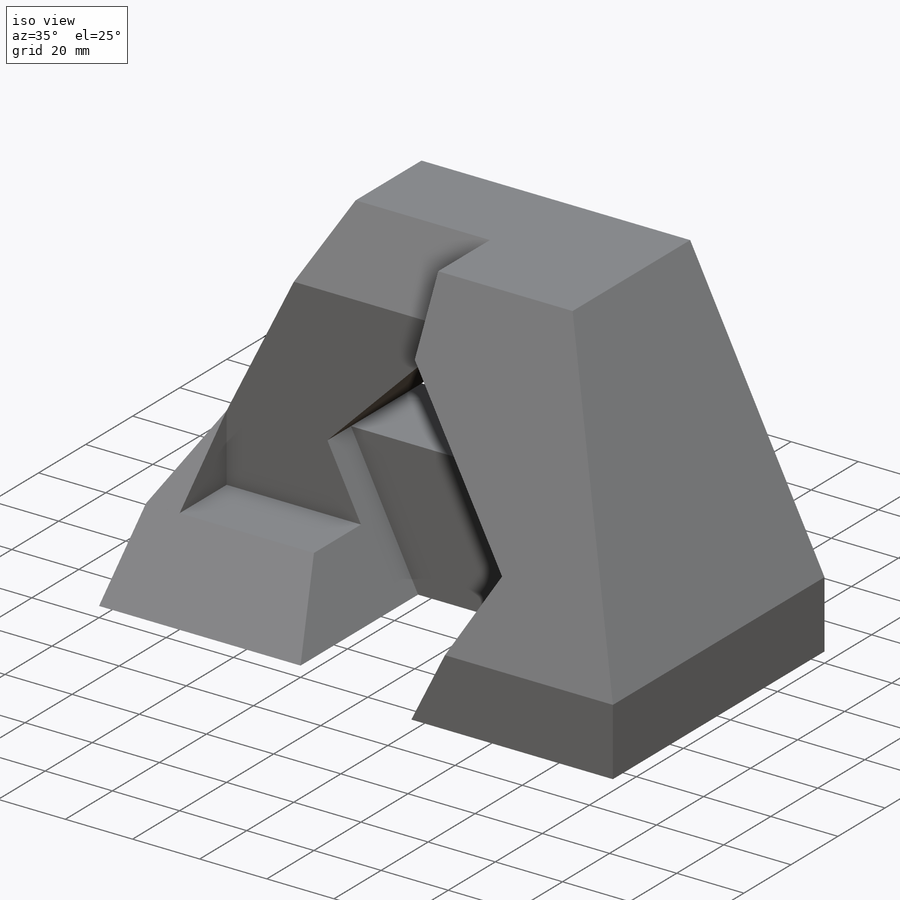
[diagram: iso view]
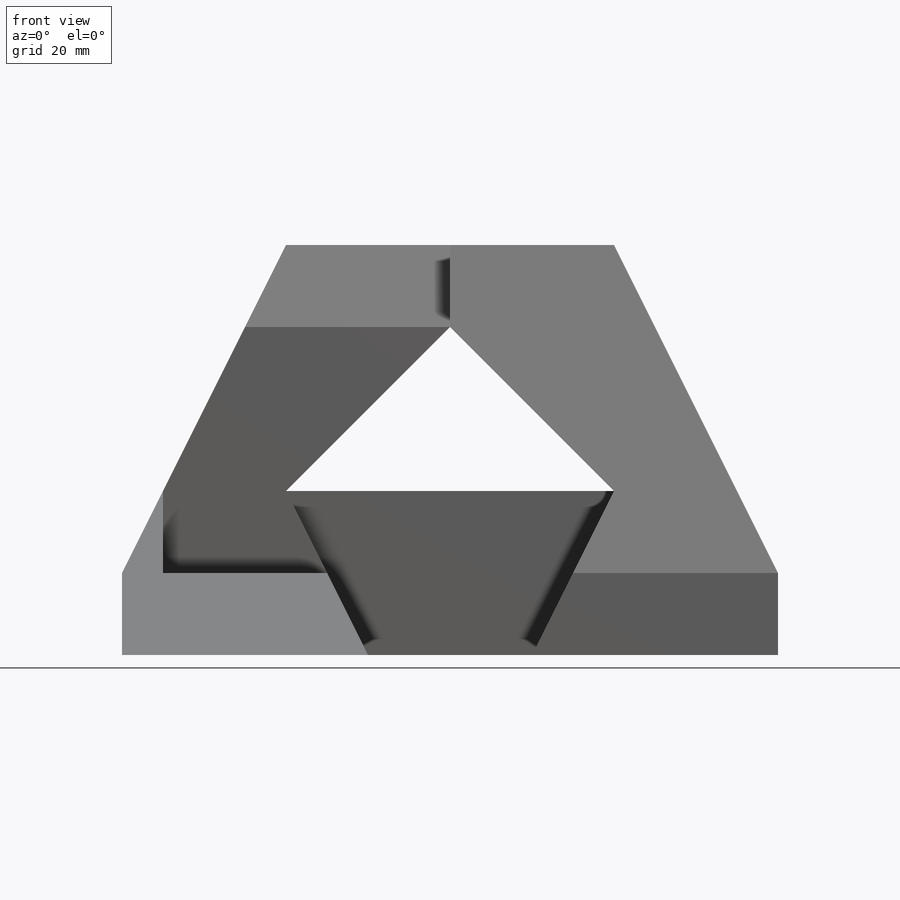
[diagram: front view]
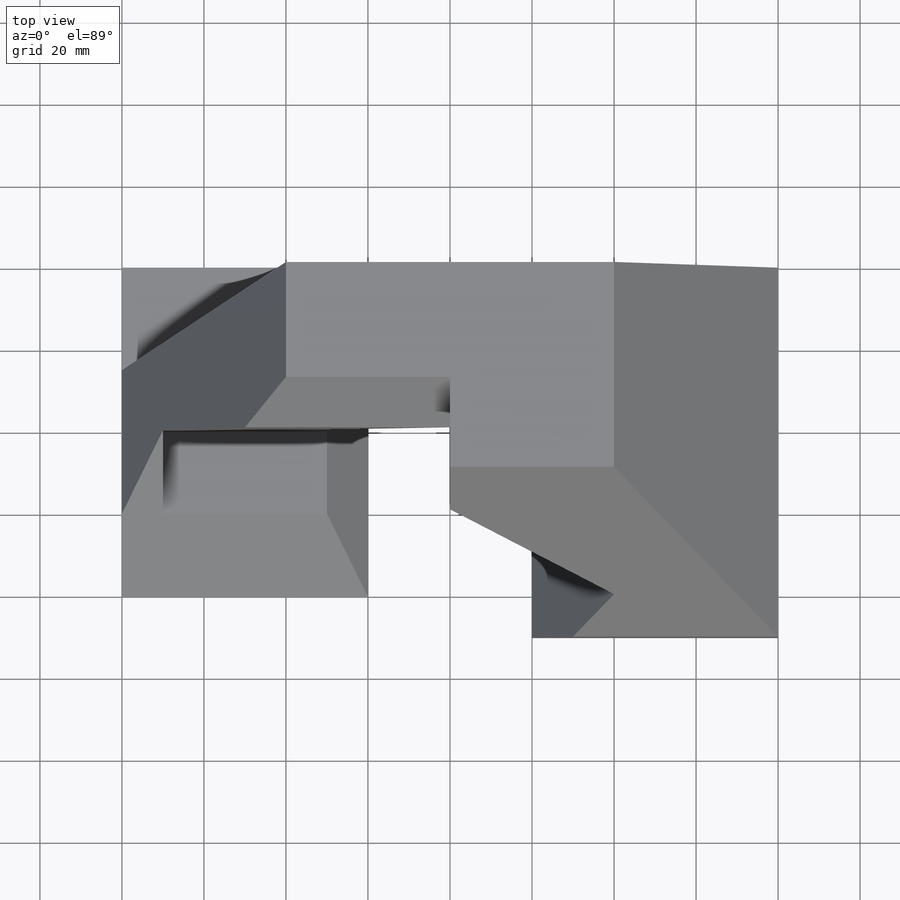
[diagram: top view]
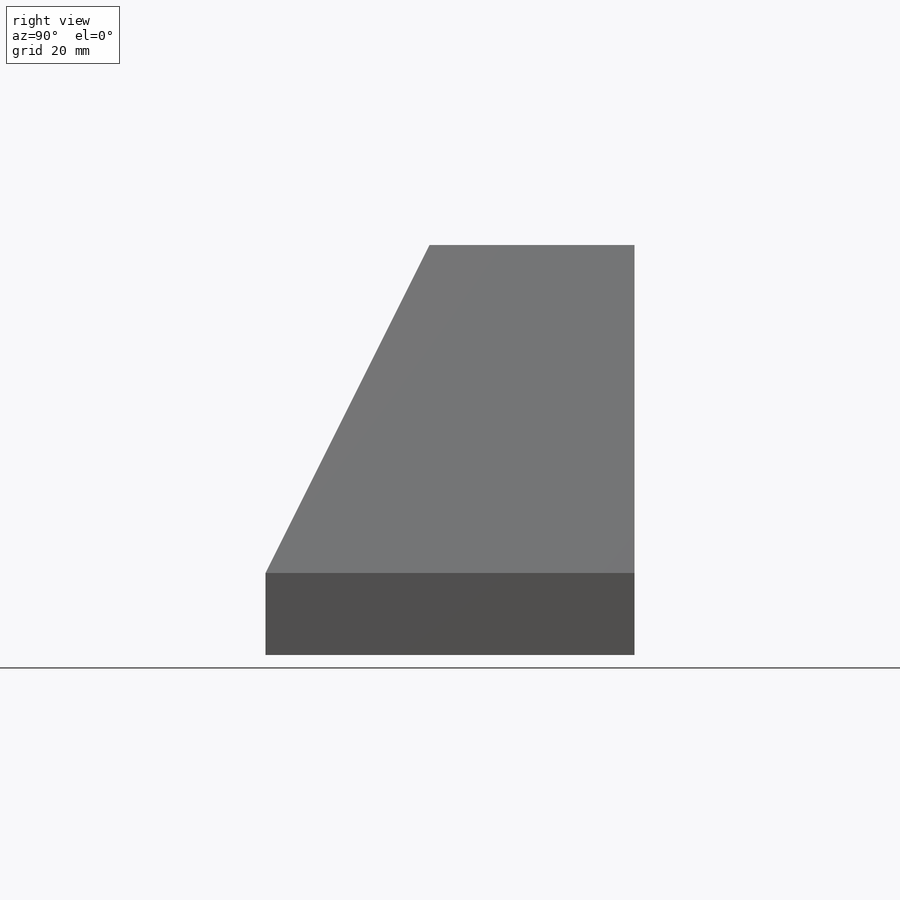
[diagram: right view]
SOLIDWORKS PART (.sldprt)
format: sldprt  version: not decoded by parser v0  size: 1,340,928 bytes
history: native  units: mm
features: sketch x78, cut_extrude x51, extrude x26, plane x6, material x1 (+13 scaffold rows collapsed)
feature tree (175):
  scaffold x13  (default folders/planes/origin — collapsed)
  material  "Material <not specified>"
  sketch  "Sketch1"  dims[D1=160.0mm D2=20.0mm D3=20.0mm D4=80.0mm D5=40.0mm D6=40.0mm D7=80.0mm]
  extrude  "Boss-Extrude1"  Depth=90mm
  sketch  "Sketch2"  dims[D1=50.0mm D2=0.0mm D3=40.0mm]
  cut_extrude  "Cut-Extrude1"  Depth=251mm
  plane  "Plane1"  Offset=90mm
  sketch  "Sketch7"  dims[D1=40.0mm D2=60.0mm D3=20.0mm D4=20.0mm D5=40.0mm D6=40.0mm D7=20.0mm D8=40.0mm]
  cut_extrude  "Cut-Extrude7"  Depth=40mm
  sketch  "Sketch8"  dims[D1=~56.568542mm]
  cut_extrude  "Cut-Extrude8"  Depth=20mm
  sketch  "Sketch9"  dims[c1.D1=~12.181833mm c1.D2=~64.185147mm c2.D1=10.0mm c2.D2=70.0mm c2.D3=50.0mm c2.D4=0.0mm]
  cut_extrude  "Cut-Extrude9"  Depth=190mm
  sketch  "Sketch10"  dims[c1.D1=~32.687858mm c1.D2=~47.620841mm c2.D1=39.999mm c2.D2=29.999mm]
  cut_extrude  "Cut-Extrude13"  Depth=190mm
  sketch  "Sketch11"  dims[D1=~22.36068mm]
  cut_extrude  "Cut-Extrude14"  Depth=190mm
  sketch  "Sketch12"  dims[D1=10.0mm D2=~11.18034mm]
  cut_extrude  "Cut-Extrude15"  Depth=190mm
  sketch  "Sketch13"
  extrude  "Boss-Extrude2"  Depth=34mm
  sketch  "Sketch14"
  extrude  "Boss-Extrude3"  Depth=34mm
  sketch  "Sketch15"
  extrude  "Boss-Extrude4"  Depth=34mm
  sketch  "Sketch17"  dims[D1=20.0mm D2=20.0mm D3=20.0mm]
  cut_extrude  "Cut-Extrude21"  Depth=77mm
  sketch  "Sketch21"  dims[D1=1.0mm D2=20.0mm]
  cut_extrude  "Cut-Extrude26"  Depth=77mm
  sketch  "Sketch22"
  cut_extrude  "Cut-Extrude27"  Depth=77mm
  sketch  "Sketch23"  dims[D1=10.0mm]
  extrude  "Boss-Extrude5"  Depth=77mm
  plane  "Plane4"
  sketch  "Sketch26"
  extrude  "Boss-Extrude7"  Depth=50mm
  sketch  "Sketch27"
  sketch  "Sketch28"  dims[D1=60.0mm D2=50.0mm]
  extrude  "Boss-Extrude8"  Depth=50mm
  sketch  "Sketch31"  dims[D1=20.0mm D2=9.999mm]
  extrude  "Boss-Extrude12"  Depth=50mm
  sketch  "Sketch32"  dims[D1=0.0mm]
  cut_extrude  "Cut-Extrude29"  Depth=2mm
  sketch  "Sketch33"
  cut_extrude  "Cut-Extrude30"  Depth=26mm
  sketch  "Sketch35"
  cut_extrude  "Cut-Extrude33"  Depth=26mm
  plane  "Plane5"
  sketch  "Sketch36"  dims[D1=80.0mm]
  cut_extrude  "Cut-Extrude34"  Depth=26mm
  sketch  "Sketch38"
  cut_extrude  "Cut-Extrude38"  Depth=5mm
  sketch  "Sketch39"  dims[D1=~17.510738mm D2=~5.117838mm D3=~48.194891mm]
  extrude  "Boss-Extrude13"  Depth=5mm
  sketch  "Sketch40"
  extrude  "Boss-Extrude14"  Depth=5mm
  sketch  "Sketch41"  dims[D1=~27.054668mm D2=~36.425906mm D3=~30.361438mm]
  extrude  "Boss-Extrude17"  Depth=5mm
  sketch  "Sketch43"  dims[D1=4.0mm]
  cut_extrude  "Cut-Extrude39"  Depth=64mm
  sketch  "Sketch44"
  cut_extrude  "Cut-Extrude40"  Depth=64mm
  sketch  "Sketch45"  dims[D1=0.0mm]
  cut_extrude  "Cut-Extrude43"  Depth=64mm
  sketch  "Sketch47"
  extrude  "Boss-Extrude19"  Depth=2mm
  sketch  "Sketch48"
  cut_extrude  "Cut-Extrude44"  Depth=5mm
  sketch  "Sketch49"
  cut_extrude  "Cut-Extrude47"  Depth=5mm
  sketch  "Sketch52"
  extrude  "Boss-Extrude24"  Depth=30mm
  sketch  "Sketch53"
  extrude  "Boss-Extrude26"  Depth=30mm
  sketch  "Sketch56"
  extrude  "Boss-Extrude27"  Depth=30mm
  sketch  "Sketch57"
  extrude  "Boss-Extrude28"  Depth=30mm
  sketch  "Sketch61"  dims[D1=0.0mm D2=~22.361127mm]
  cut_extrude  "Cut-Extrude55"  Depth=20mm
  sketch  "Sketch62"
  extrude  "Boss-Extrude30"  Depth=10mm
  plane  "Plane6"  Offset=40mm
  sketch  "Sketch63"  dims[D1=0.0mm]
  cut_extrude  "Cut-Extrude56"  Depth=79mm
  sketch  "Sketch64"  dims[D1=0.0mm D2=20.0mm D3=22.0mm]
  cut_extrude  "Cut-Extrude57"  Depth=79mm
  sketch  "Sketch65"  dims[D1=~12.224609mm]
  cut_extrude  "Cut-Extrude58"  Depth=79mm
  sketch  "Sketch66"
  cut_extrude  "Cut-Extrude59"  Depth=10mm
  sketch  "Sketch67"  dims[D1=10.0mm D2=20.0mm]
  cut_extrude  "Cut-Extrude64"  Depth=20mm
  sketch  "Sketch71"  dims[D1=0.0mm]
  extrude  "Boss-Extrude32"  Depth=20mm
  sketch  "Sketch72"
  cut_extrude  "Cut-Extrude65"  Depth=49mm
  sketch  "Sketch73"
  cut_extrude  "Cut-Extrude66"  Depth=49mm
  sketch  "Sketch75"  dims[D1=20.0mm]
  extrude  "Boss-Extrude33"  Depth=2mm
  sketch  "Sketch77"
  cut_extrude  "Cut-Extrude69"  Depth=29mm
  sketch  "Sketch78"
  cut_extrude  "Cut-Extrude70"  Depth=29mm
  sketch  "Sketch80"
  cut_extrude  "Cut-Extrude72"  Depth=2mm
  sketch  "Sketch81"
  cut_extrude  "Cut-Extrude73"  Depth=2mm
  sketch  "Sketch82"
  cut_extrude  "Cut-Extrude76"  Depth=40mm
  sketch  "Sketch83"  dims[c1.D1=19.9995mm c2.D1=90.0deg c3.D1=20.0mm]
  cut_extrude  "Cut-Extrude77"  Depth=20mm
  sketch  "Sketch86"  dims[D1=80.0mm]
  cut_extrude  "Cut-Extrude82"  Depth=40mm
  sketch  "Sketch87"  dims[D1=25.0mm]
  cut_extrude  "Cut-Extrude84"  Depth=39.999mm
  sketch  "Sketch89"
  cut_extrude  "Cut-Extrude85"  Depth=0.0001mm
  sketch  "Sketch90"
  extrude  "Boss-Extrude34"  Depth=2mm
  sketch  "Sketch91"
  cut_extrude  "Cut-Extrude86"  Depth=2mm
  sketch  "Sketch95"  dims[D1=40.0009mm]
  cut_extrude  "Cut-Extrude88"  Depth=56mm
  sketch  "Sketch96"
  extrude  "Boss-Extrude40"  Depth=20mm
  sketch  "Sketch97"
  cut_extrude  "Cut-Extrude89"  Depth=20mm
  sketch  "Sketch98"
  extrude  "Boss-Extrude41"  Depth=50mm
  sketch  "Sketch99"
  extrude  "Boss-Extrude42"  Depth=40mm
  sketch  "Sketch100"
  extrude  "Boss-Extrude43"  Depth=20mm
  sketch  "Sketch102"  dims[D1=60.0015mm]
  cut_extrude  "Cut-Extrude90"  Depth=20mm
  sketch  "Sketch103"
  extrude  "Boss-Extrude44"  Depth=60mm
  plane  "Plane9"  Offset=80mm
  sketch  "Sketch105"  dims[D1=20.0mm D2=22.0mm D3=20.0mm]
  cut_extrude  "Cut-Extrude91"  Depth=60mm
  sketch  "Sketch106"  dims[D1=40.0mm D2=0.0mm]
  cut_extrude  "Cut-Extrude92"  Depth=60mm
  sketch  "Sketch107"
  cut_extrude  "Cut-Extrude93"  Depth=10mm
  sketch  "Sketch109"
  cut_extrude  "Cut-Extrude96"  Depth=20mm
  sketch  "Sketch111"
  cut_extrude  "Cut-Extrude98"  Depth=20mm
  sketch  "Sketch112"
  extrude  "Boss-Extrude45"  Depth=20mm
  sketch  "Sketch113"
  cut_extrude  "Cut-Extrude99"  Depth=20mm
  sketch  "Sketch114"
  cut_extrude  "Cut-Extrude100"  Depth=10mm
  sketch  "Sketch115"  dims[D1=80.0mm]
  cut_extrude  "Cut-Extrude101"  Depth=142mm
  plane  "Plane11"
  sketch  "Sketch117"  dims[D1=25.0mm D2=0.0mm]
  cut_extrude  "Cut-Extrude106"  Depth=39.999mm
  sketch  "Sketch118"
  cut_extrude  "Cut-Extrude107"  Depth=10mm
decode coverage: 112 of 155 modeling features carry decoded parameters
note: ~ marks probable driven/reference dimensions
note: suppression state not decoded; provenance and decode notes live in map.json
